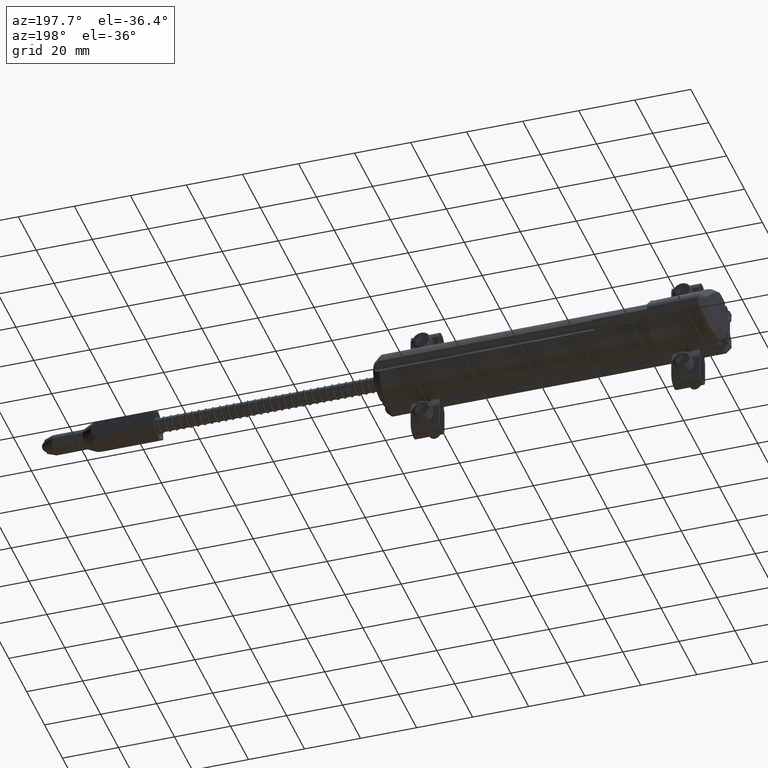
[diagram: clean part render]
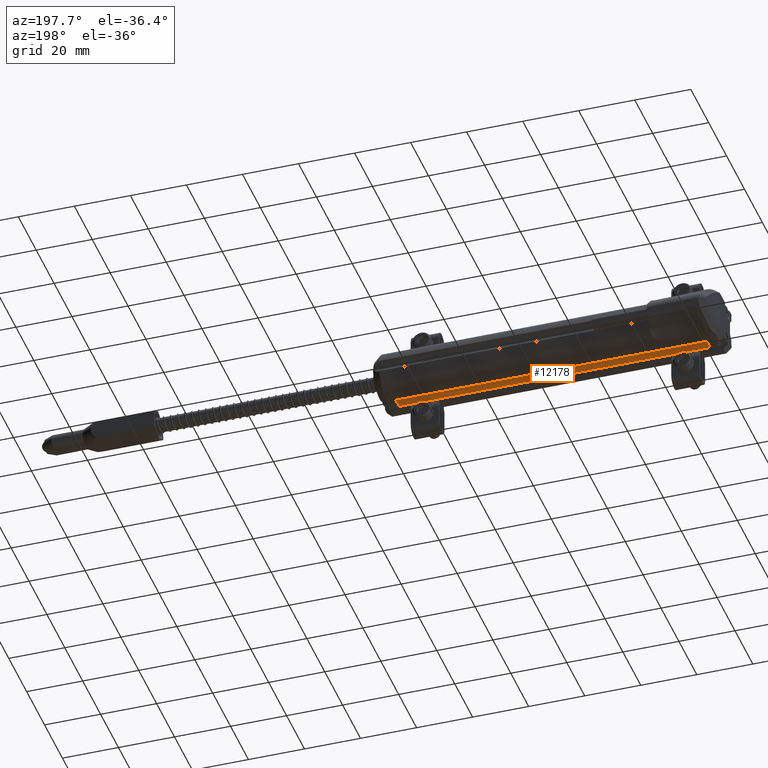
[diagram: same view with one face highlighted and labeled with its STEP entity id]
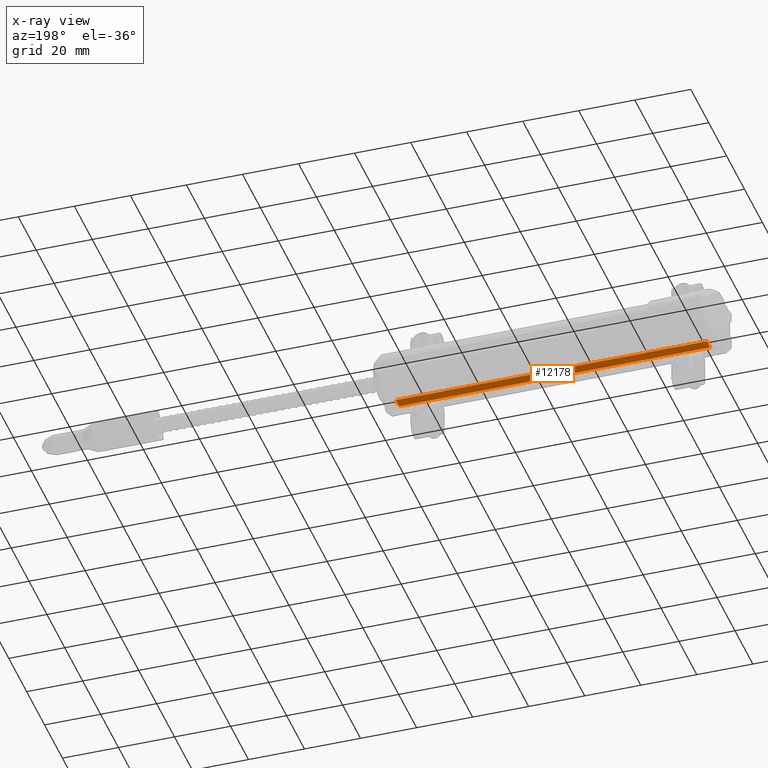
[diagram: x-ray of the same camera — body ghosted, the highlighted face saturated]
A machine part, auxiliary view. The second image highlights one B-rep face of the part: STEP entity #12178.
The next image is the same camera in x-ray: the body ghosted, the highlighted face saturated — about 0% of this face is hidden behind the body in this view.
In plain terms, the highlighted planar face has unit normal (-0, -0, 1).
Its self-contained STEP definition (entity closure, byte-faithful):
#1233 = EDGE_CURVE ( 'NONE', #33720, #16097, #12613, .T. ) ;
#2456 = CARTESIAN_POINT ( 'NONE',  ( -0.1574803149606300579, -0.1074803149116314166, -0.3543307086614169155 ) ) ;
#2830 = CARTESIAN_POINT ( 'NONE',  ( -0.1574803149606300579, 0.03856533019685044056, -0.3543307086614169155 ) ) ;
#5241 = CARTESIAN_POINT ( 'NONE',  ( -4.527559055118110187, -0.1074803149197975649, -0.3543307086695843267 ) ) ;
#5459 = LINE ( 'NONE', #2830, #23727 ) ;
#5630 = CARTESIAN_POINT ( 'NONE',  ( -0.1574803149606300579, 0.03856533019685044056, -0.3543307086614169155 ) ) ;
#5922 = CARTESIAN_POINT ( 'NONE',  ( -3.543307086614172263, -0.1074803149606298469, -0.3543307086614170265 ) ) ;
#6122 = EDGE_LOOP ( 'NONE', ( #10410, #25728, #6804, #8949 ) ) ;
#6804 = ORIENTED_EDGE ( 'NONE', *, *, #11971, .F. ) ;
#6821 = DIRECTION ( 'NONE',  ( 1.000000000000000000, -1.033975794397574105E-25, 2.391543914929064682E-17 ) ) ;
#8949 = ORIENTED_EDGE ( 'NONE', *, *, #1233, .F. ) ;
#10410 = ORIENTED_EDGE ( 'NONE', *, *, #22331, .T. ) ;
#11971 = EDGE_CURVE ( 'NONE', #16097, #25708, #19803, .T. ) ;
#12178 = ADVANCED_FACE ( 'NONE', ( #22275 ), #19286, .F. ) ;
#12613 = LINE ( 'NONE', #14733, #16220 ) ;
#13202 = AXIS2_PLACEMENT_3D ( 'NONE', #5922, #16653, #27392 ) ;
#14244 = DIRECTION ( 'NONE',  ( -1.000000000000000000, 1.033975794397574105E-25, -2.391543914929064682E-17 ) ) ;
#14733 = CARTESIAN_POINT ( 'NONE',  ( -3.543307086614172263, -0.1074803149116314166, -0.3543307086614170265 ) ) ;
#16097 = VERTEX_POINT ( 'NONE', #2456 ) ;
#16220 = VECTOR ( 'NONE', #6821, 39.37007874015748143 ) ;
#16653 = DIRECTION ( 'NONE',  ( -2.391543914929064682E-17, -1.201068257667177748E-16, 1.000000000000000000 ) ) ;
#17169 = CARTESIAN_POINT ( 'NONE',  ( -0.1574803149606300579, -0.1074803149606298469, -0.3543307086614169155 ) ) ;
#17240 = DIRECTION ( 'NONE',  ( 1.033975765673499961E-25, 1.000000000000000000, 1.201068257667177748E-16 ) ) ;
#19286 = PLANE ( 'NONE',  #13202 ) ;
#19803 = LINE ( 'NONE', #17169, #23319 ) ;
#22275 = FACE_OUTER_BOUND ( 'NONE', #6122, .T. ) ;
#22331 = EDGE_CURVE ( 'NONE', #33720, #27363, #24814, .T. ) ;
#23319 = VECTOR ( 'NONE', #33197, 39.37007874015748143 ) ;
#23727 = VECTOR ( 'NONE', #14244, 39.37007874015748143 ) ;
#24814 = LINE ( 'NONE', #30120, #25304 ) ;
#25304 = VECTOR ( 'NONE', #17240, 39.37007874015748143 ) ;
#25699 = EDGE_CURVE ( 'NONE', #25708, #27363, #5459, .T. ) ;
#25708 = VERTEX_POINT ( 'NONE', #5630 ) ;
#25728 = ORIENTED_EDGE ( 'NONE', *, *, #25699, .F. ) ;
#27333 = CARTESIAN_POINT ( 'NONE',  ( -4.527559055118110187, 0.03856533019685044056, -0.3543307086614170265 ) ) ;
#27363 = VERTEX_POINT ( 'NONE', #27333 ) ;
#27392 = DIRECTION ( 'NONE',  ( 1.000000000000000000, -1.033975794397574105E-25, 2.391543914929064682E-17 ) ) ;
#30120 = CARTESIAN_POINT ( 'NONE',  ( -4.527559055118110187, -0.3070866141732282451, -0.3543307086614170265 ) ) ;
#33197 = DIRECTION ( 'NONE',  ( 1.033975765673499961E-25, 1.000000000000000000, 1.201068257667177748E-16 ) ) ;
#33720 = VERTEX_POINT ( 'NONE', #5241 ) ;